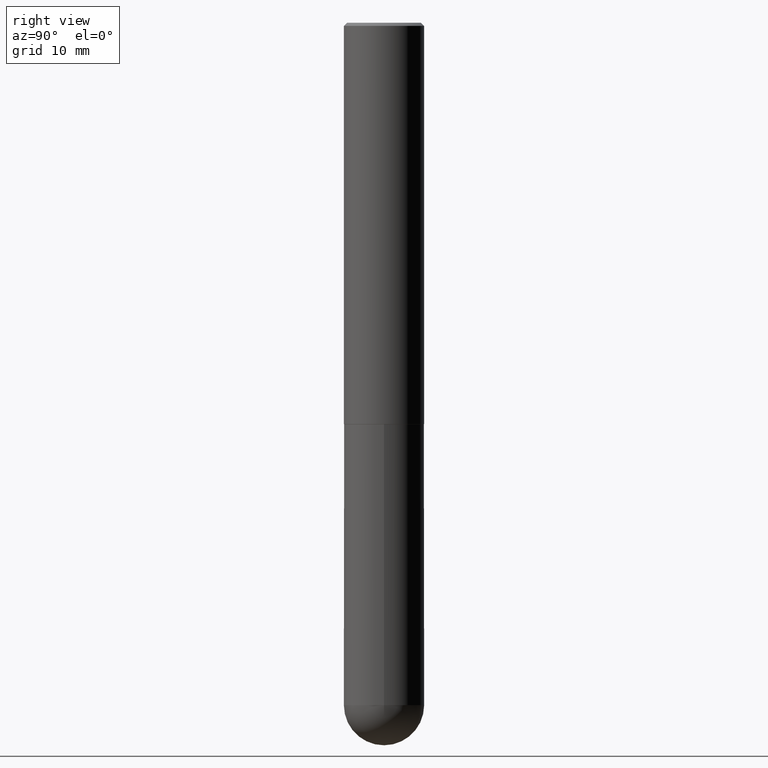
[diagram: clean part render]
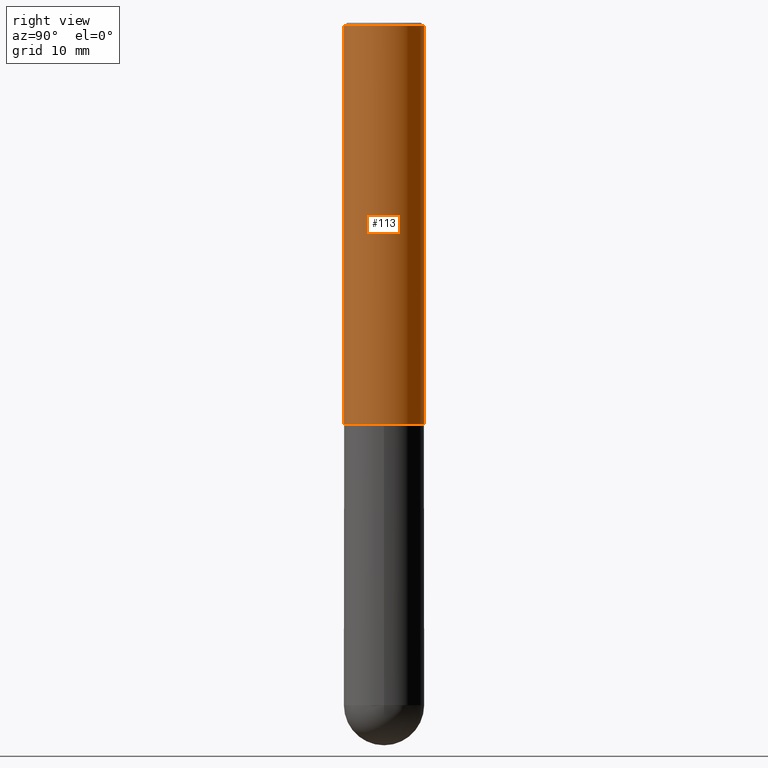
[diagram: same view with one face highlighted and labeled with its STEP entity id]
A machine part, right view. The second image highlights one B-rep face of the part: STEP entity #113.
In plain terms, the highlighted cylindrical surface (partial cylindrical patch) has radius 6.35 mm, axis along (-0, 0, 1).
Its self-contained STEP definition (entity closure, byte-faithful):
#1 = CARTESIAN_POINT ( 'NONE',  ( 0.000000000000000000, 0.000000000000000000, 0.000000000000000000 ) ) ;
#23 = LINE ( 'NONE', #182, #104 ) ;
#34 = AXIS2_PLACEMENT_3D ( 'NONE', #83, #345, #185 ) ;
#37 = LINE ( 'NONE', #233, #336 ) ;
#55 = CARTESIAN_POINT ( 'NONE',  ( -1.715124499442882299E-15, -0.2500000000000000555, -0.01999999999999918510 ) ) ;
#58 = DIRECTION ( 'NONE',  ( -2.445513538630171807E-29, 3.491417279435842514E-15, 1.000000000000000000 ) ) ;
#60 = EDGE_CURVE ( 'NONE', #363, #390, #23, .T. ) ;
#61 = AXIS2_PLACEMENT_3D ( 'NONE', #1, #124, #89 ) ;
#75 = EDGE_CURVE ( 'NONE', #246, #390, #374, .T. ) ;
#83 = CARTESIAN_POINT ( 'NONE',  ( 4.891027077260356751E-31, -6.982834558871704009E-17, -0.02000000000000005593 ) ) ;
#89 = DIRECTION ( 'NONE',  ( -6.982962677686266711E-15, -1.000000000000000000, 3.491417279435842908E-15 ) ) ;
#91 = DIRECTION ( 'NONE',  ( -6.982962677686265922E-15, -1.000000000000000000, 4.370956789862816416E-15 ) ) ;
#103 = ORIENTED_EDGE ( 'NONE', *, *, #75, .F. ) ;
#104 = VECTOR ( 'NONE', #58, 39.37007874015748143 ) ;
#113 = ADVANCED_FACE ( 'NONE', ( #406 ), #217, .T. ) ;
#124 = DIRECTION ( 'NONE',  ( -2.445513538630171807E-29, 3.491417279435842514E-15, 1.000000000000000000 ) ) ;
#131 = EDGE_CURVE ( 'NONE', #366, #363, #298, .T. ) ;
#137 = AXIS2_PLACEMENT_3D ( 'NONE', #314, #381, #91 ) ;
#145 = ORIENTED_EDGE ( 'NONE', *, *, #60, .T. ) ;
#159 = CARTESIAN_POINT ( 'NONE',  ( 1.745740669421566875E-15, 0.2499999999999999167, -0.02000000000000092676 ) ) ;
#165 = CARTESIAN_POINT ( 'NONE',  ( 1.776356839400282414E-15, 0.2499999999999915345, -2.499000000000001442 ) ) ;
#169 = ORIENTED_EDGE ( 'NONE', *, *, #353, .F. ) ;
#182 = CARTESIAN_POINT ( 'NONE',  ( 1.776356839400251254E-15, 0.2500000000000001110, -8.728543198589611215E-16 ) ) ;
#185 = DIRECTION ( 'NONE',  ( -6.982962677686265922E-15, -1.000000000000000000, 3.483106191921935554E-15 ) ) ;
#198 = CARTESIAN_POINT ( 'NONE',  ( -1.745740669421507316E-15, -0.2500000000000089928, -2.498999999999999222 ) ) ;
#217 = CYLINDRICAL_SURFACE ( 'NONE', #61, 0.2500000000000001110 ) ;
#233 = CARTESIAN_POINT ( 'NONE',  ( -1.745740669421567467E-15, -0.2500000000000001110, 8.728543198589611215E-16 ) ) ;
#246 = VERTEX_POINT ( 'NONE', #55 ) ;
#268 = DIRECTION ( 'NONE',  ( -2.445513538630171807E-29, 3.491417279435842514E-15, 1.000000000000000000 ) ) ;
#298 = CIRCLE ( 'NONE', #137, 0.2500000000000002776 ) ;
#314 = CARTESIAN_POINT ( 'NONE',  ( 6.111338333036800677E-29, -8.725051781310170684E-15, -2.499000000000000110 ) ) ;
#336 = VECTOR ( 'NONE', #268, 39.37007874015748143 ) ;
#345 = DIRECTION ( 'NONE',  ( -2.445513538630171807E-29, 3.491417279435842514E-15, 1.000000000000000000 ) ) ;
#353 = EDGE_CURVE ( 'NONE', #366, #246, #37, .T. ) ;
#363 = VERTEX_POINT ( 'NONE', #165 ) ;
#366 = VERTEX_POINT ( 'NONE', #198 ) ;
#374 = CIRCLE ( 'NONE', #34, 0.2500000000000000000 ) ;
#381 = DIRECTION ( 'NONE',  ( -2.445513538630171807E-29, 3.491417279435842514E-15, 1.000000000000000000 ) ) ;
#390 = VERTEX_POINT ( 'NONE', #159 ) ;
#393 = ORIENTED_EDGE ( 'NONE', *, *, #131, .T. ) ;
#396 = EDGE_LOOP ( 'NONE', ( #393, #145, #103, #169 ) ) ;
#406 = FACE_OUTER_BOUND ( 'NONE', #396, .T. ) ;